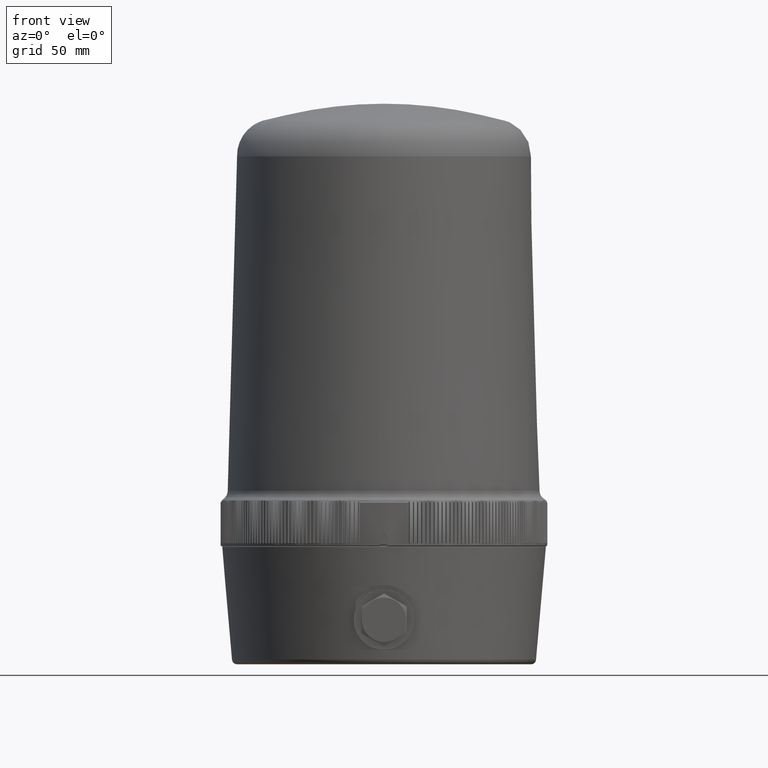
[diagram: clean part render]
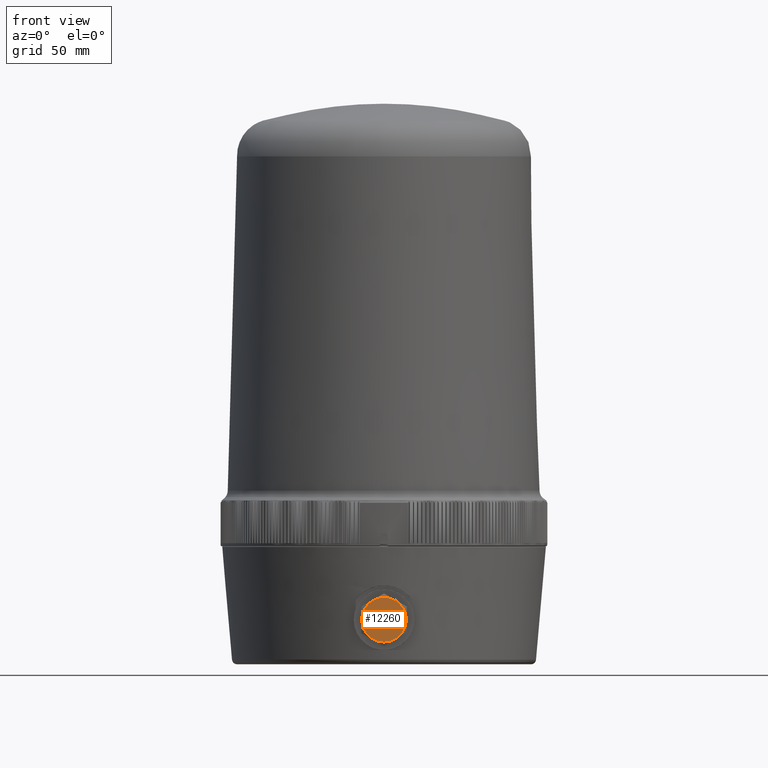
[diagram: same view with one face highlighted and labeled with its STEP entity id]
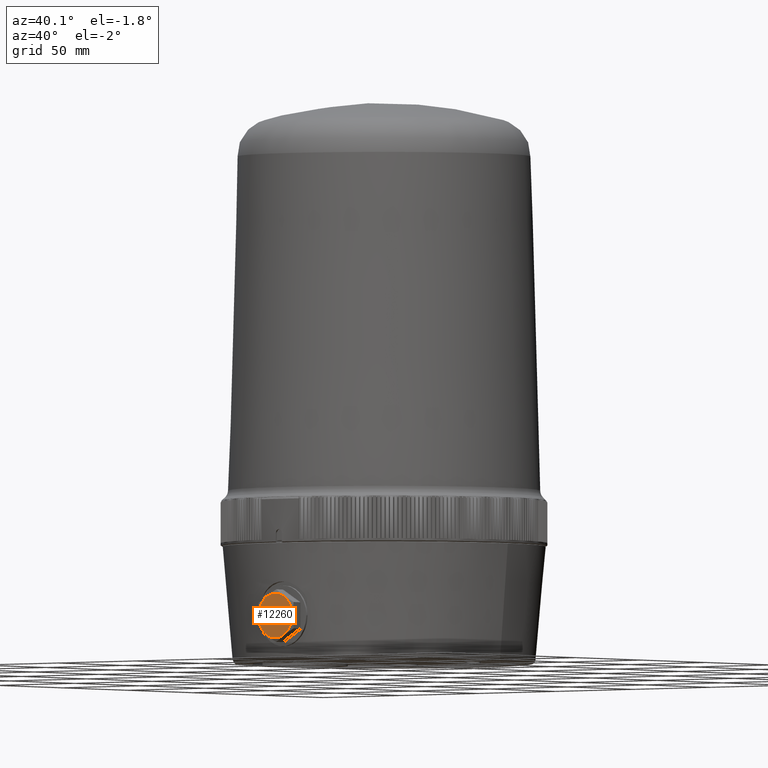
[diagram: same view with one face highlighted and labeled with its STEP entity id]
A machine part, front view. The second image highlights one B-rep face of the part: STEP entity #12260.
A second angle (auxiliary view) of the same face is appended — the face is thin or edge-on in the first view.
In plain terms, the highlighted planar face has unit normal (0, -1, 0).
Its self-contained STEP definition (entity closure, byte-faithful):
#8065=FACE_OUTER_BOUND('',#14300,.T.);
#12260=ADVANCED_FACE('',(#8065),#13072,.T.);
#13072=PLANE('',#26436);
#14300=EDGE_LOOP('',(#19449));
#19449=ORIENTED_EDGE('',*,*,#23777,.T.);
#21175=VERTEX_POINT('',#37885);
#23777=EDGE_CURVE('',#21175,#21175,#24615,.T.);
#24615=CIRCLE('',#26435,11.);
#26435=AXIS2_PLACEMENT_3D('',#37884,#31403,#31404);
#26436=AXIS2_PLACEMENT_3D('',#37886,#31405,#31406);
#31403=DIRECTION('',(0.,-1.,0.));
#31404=DIRECTION('',(0.,0.,1.));
#31405=DIRECTION('',(0.,-1.,0.));
#31406=DIRECTION('',(0.,0.,1.));
#37884=CARTESIAN_POINT('',(5.75331882829433E-013,-83.4,-18.5));
#37885=CARTESIAN_POINT('',(5.75331882829433E-013,-83.4,-7.5));
#37886=CARTESIAN_POINT('',(5.75331882829433E-013,-83.4,-18.5));